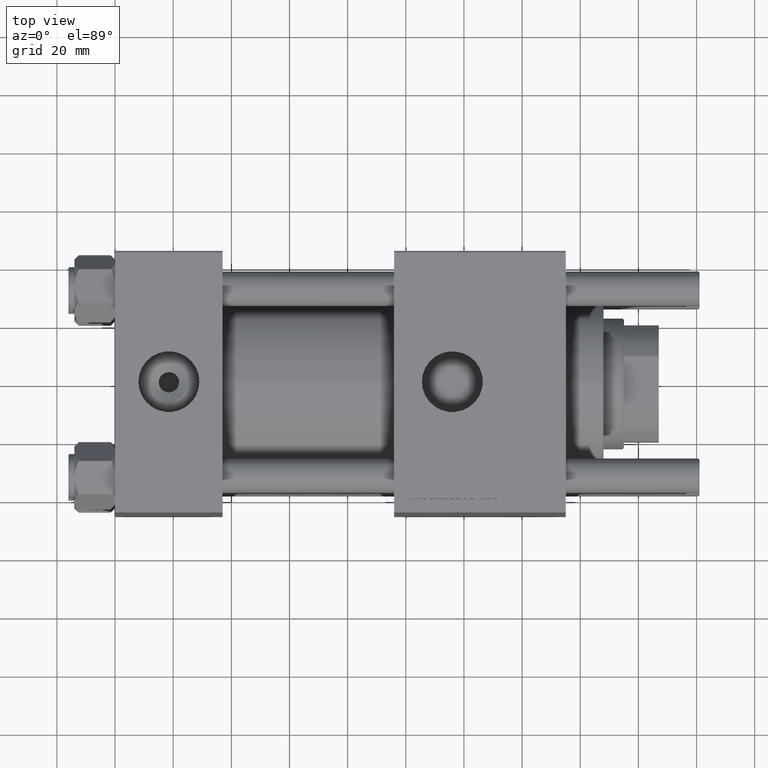
[diagram: clean part render]
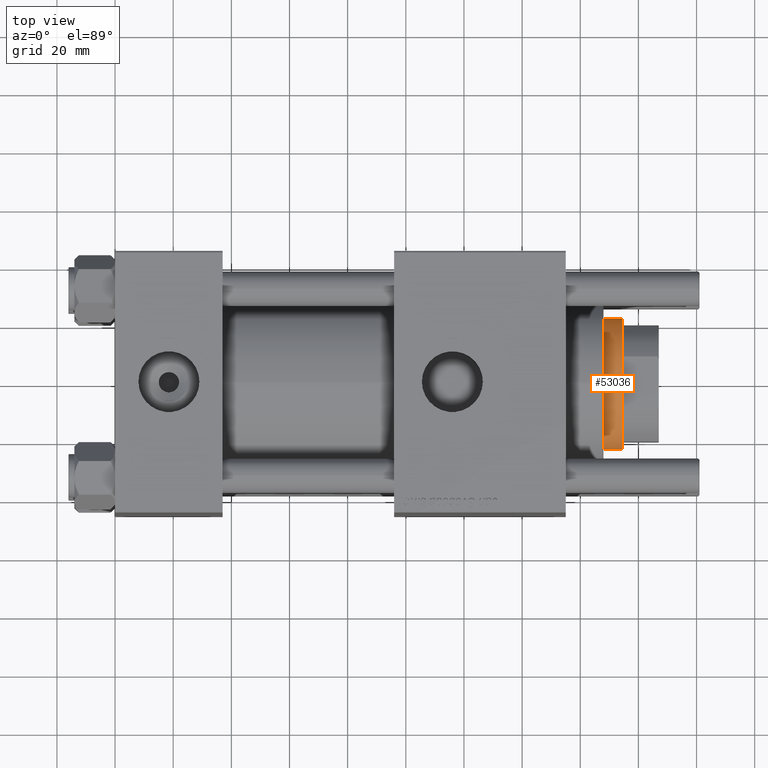
[diagram: same view with one face highlighted and labeled with its STEP entity id]
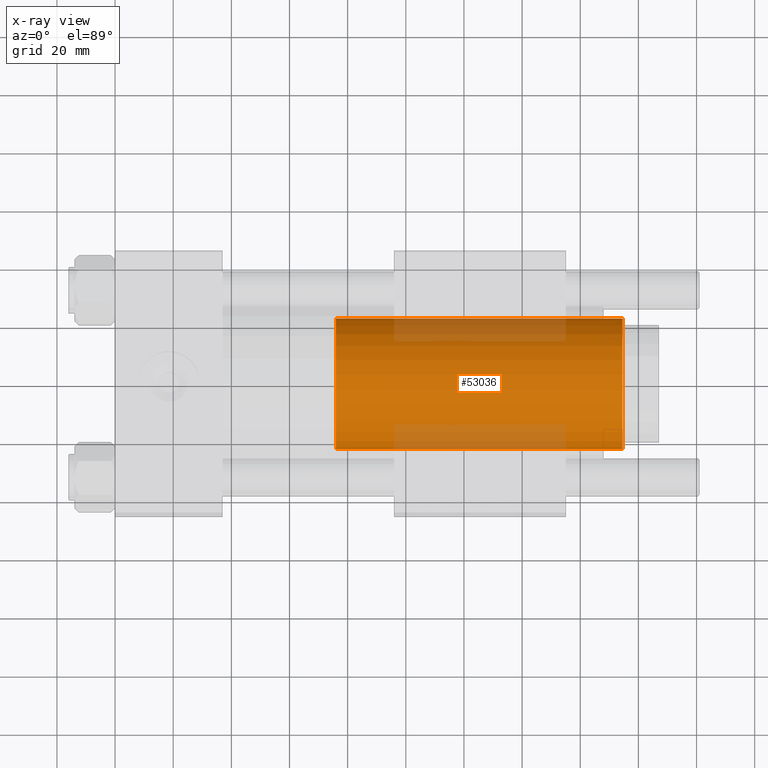
[diagram: x-ray of the same camera — body ghosted, the highlighted face saturated]
A machine part, top view. The second image highlights one B-rep face of the part: STEP entity #53036.
The next image is the same camera in x-ray: the body ghosted, the highlighted face saturated — about 22% of this face is hidden behind the body in this view.
In plain terms, the highlighted cylindrical surface (partial cylindrical patch) has radius 22.5 mm, axis along (-1, 0, 0).
Its self-contained STEP definition (entity closure, byte-faithful):
#3167 = EDGE_CURVE ( 'NONE', #51086, #46256, #10276, .T. ) ;
#4673 = VECTOR ( 'NONE', #13724, 1000.000000000000000 ) ;
#5673 = CARTESIAN_POINT ( 'NONE',  ( 22.50000000000000355, 2.755455298081545172E-15, 138.0000000000000000 ) ) ;
#6063 = FACE_OUTER_BOUND ( 'NONE', #18234, .T. ) ;
#6307 = CARTESIAN_POINT ( 'NONE',  ( 22.50000000000000355, 2.755455298081545172E-15, 39.00000000000000000 ) ) ;
#9458 = CARTESIAN_POINT ( 'NONE',  ( 0.000000000000000000, 0.000000000000000000, 137.5000000000000568 ) ) ;
#9618 = DIRECTION ( 'NONE',  ( -0.000000000000000000, -0.000000000000000000, -1.000000000000000000 ) ) ;
#9905 = CARTESIAN_POINT ( 'NONE',  ( -22.50000000000000355, 0.000000000000000000, 138.0000000000000000 ) ) ;
#10276 = CIRCLE ( 'NONE', #34075, 22.50000000000000355 ) ;
#10884 = CARTESIAN_POINT ( 'NONE',  ( -22.50000000000000355, 0.000000000000000000, 137.5000000000000568 ) ) ;
#13724 = DIRECTION ( 'NONE',  ( -0.000000000000000000, -0.000000000000000000, -1.000000000000000000 ) ) ;
#15254 = DIRECTION ( 'NONE',  ( 0.000000000000000000, 0.000000000000000000, 1.000000000000000000 ) ) ;
#18234 = EDGE_LOOP ( 'NONE', ( #41062, #20833, #52200, #47982 ) ) ;
#20833 = ORIENTED_EDGE ( 'NONE', *, *, #3167, .T. ) ;
#21304 = CIRCLE ( 'NONE', #35914, 22.50000000000000355 ) ;
#22060 = EDGE_CURVE ( 'NONE', #46256, #44442, #27386, .T. ) ;
#23481 = DIRECTION ( 'NONE',  ( 1.000000000000000000, 0.000000000000000000, 0.000000000000000000 ) ) ;
#23548 = CYLINDRICAL_SURFACE ( 'NONE', #44380, 22.50000000000000355 ) ;
#27386 = LINE ( 'NONE', #9905, #29905 ) ;
#28282 = CARTESIAN_POINT ( 'NONE',  ( -22.50000000000000355, 0.000000000000000000, 39.00000000000000000 ) ) ;
#28723 = VERTEX_POINT ( 'NONE', #6307 ) ;
#29905 = VECTOR ( 'NONE', #9618, 1000.000000000000000 ) ;
#32439 = CARTESIAN_POINT ( 'NONE',  ( 0.000000000000000000, 0.000000000000000000, 138.0000000000000000 ) ) ;
#32737 = DIRECTION ( 'NONE',  ( 1.000000000000000000, 0.000000000000000000, 0.000000000000000000 ) ) ;
#33547 = DIRECTION ( 'NONE',  ( -1.000000000000000000, 0.000000000000000000, 0.000000000000000000 ) ) ;
#34075 = AXIS2_PLACEMENT_3D ( 'NONE', #9458, #36103, #23481 ) ;
#35764 = EDGE_CURVE ( 'NONE', #51086, #28723, #45216, .T. ) ;
#35914 = AXIS2_PLACEMENT_3D ( 'NONE', #54503, #15254, #32737 ) ;
#36103 = DIRECTION ( 'NONE',  ( 0.000000000000000000, 0.000000000000000000, -1.000000000000000000 ) ) ;
#41062 = ORIENTED_EDGE ( 'NONE', *, *, #35764, .F. ) ;
#41584 = DIRECTION ( 'NONE',  ( -0.000000000000000000, -0.000000000000000000, -1.000000000000000000 ) ) ;
#44380 = AXIS2_PLACEMENT_3D ( 'NONE', #32439, #41584, #33547 ) ;
#44442 = VERTEX_POINT ( 'NONE', #28282 ) ;
#44631 = CARTESIAN_POINT ( 'NONE',  ( 22.50000000000000355, 2.755455298081545172E-15, 137.5000000000000568 ) ) ;
#45208 = EDGE_CURVE ( 'NONE', #44442, #28723, #21304, .T. ) ;
#45216 = LINE ( 'NONE', #5673, #4673 ) ;
#46256 = VERTEX_POINT ( 'NONE', #10884 ) ;
#47982 = ORIENTED_EDGE ( 'NONE', *, *, #45208, .T. ) ;
#51086 = VERTEX_POINT ( 'NONE', #44631 ) ;
#52200 = ORIENTED_EDGE ( 'NONE', *, *, #22060, .T. ) ;
#53036 = ADVANCED_FACE ( 'NONE', ( #6063 ), #23548, .T. ) ;
#54503 = CARTESIAN_POINT ( 'NONE',  ( 0.000000000000000000, 0.000000000000000000, 39.00000000000000000 ) ) ;